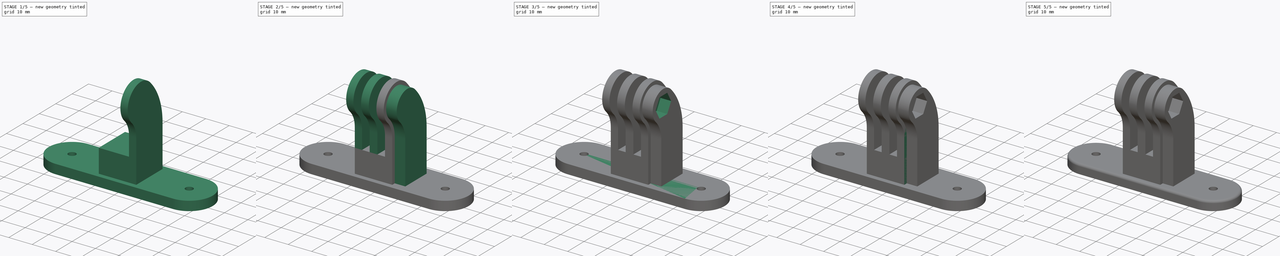
[diagram: build sequence overview — one tinted view per stage of 5, left to right]
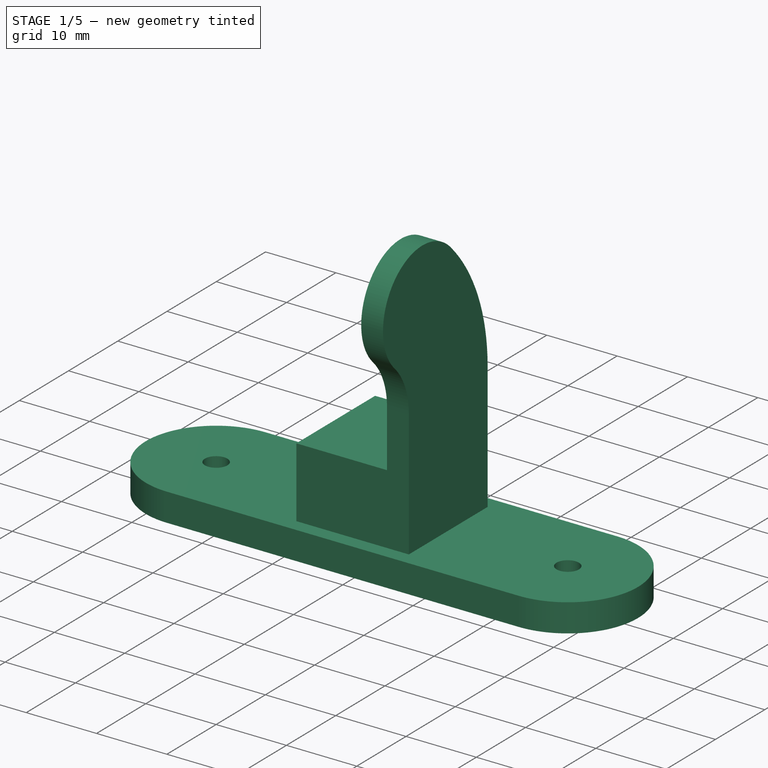
[diagram: stage 1 of 5 — iso view after this stage's code; geometry added in this stage tinted green]
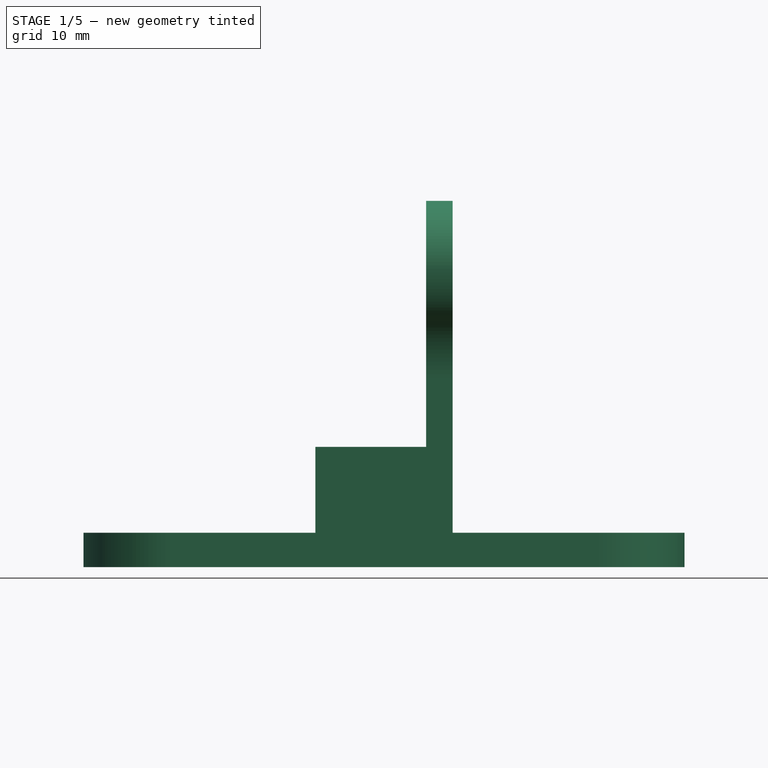
[diagram: stage 1 of 5 — front view after this stage's code; geometry added in this stage tinted green]
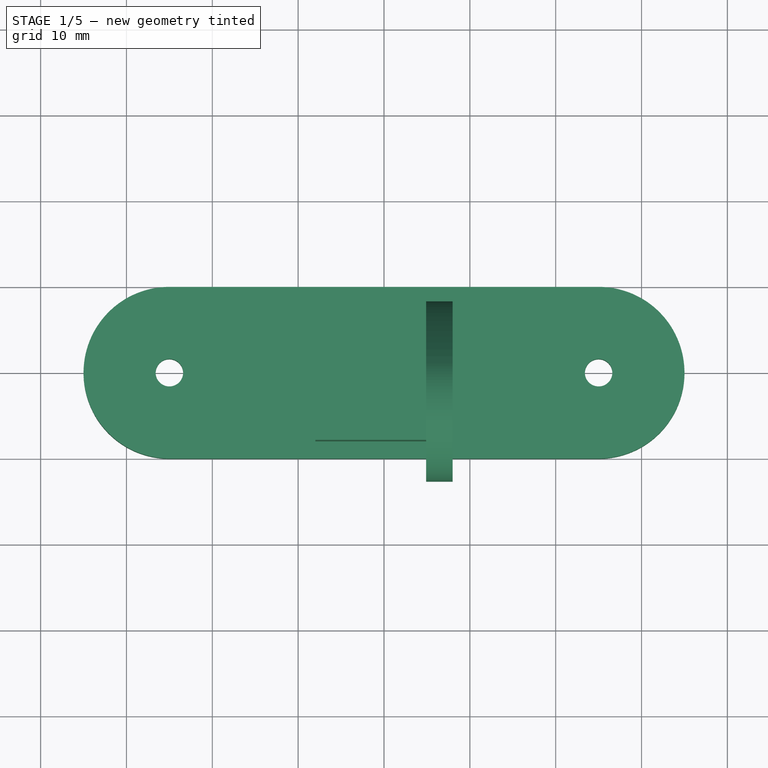
[diagram: stage 1 of 5 — top view after this stage's code; geometry added in this stage tinted green]
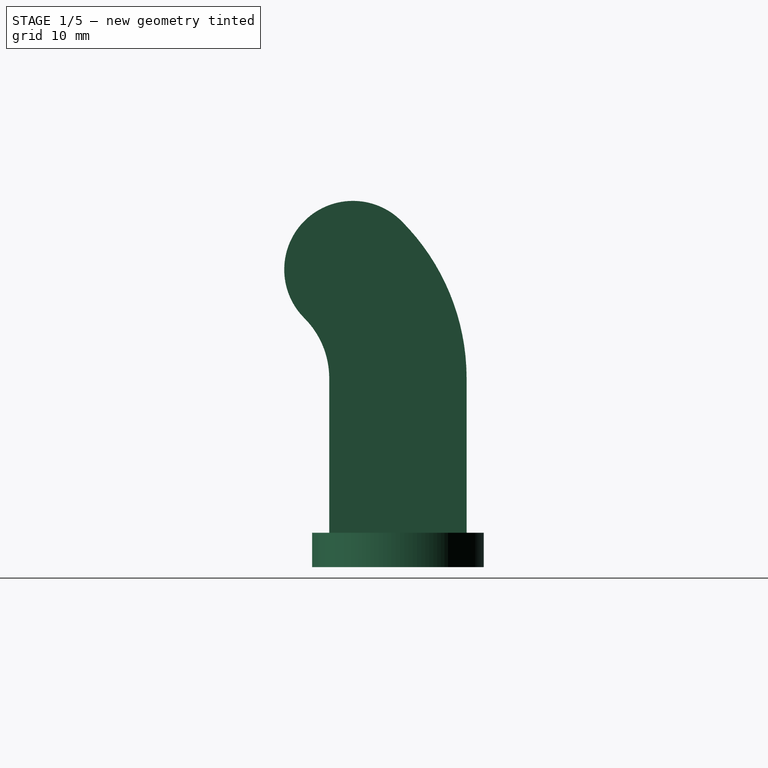
[diagram: stage 1 of 5 — right view after this stage's code; geometry added in this stage tinted green]
FCSTD DOCUMENT  (FreeCAD 0.19R24291 (Git))
Label: Screw-Mount
License: All rights reserved
LicenseURL: http://en.wikipedia.org/wiki/All_rights_reserved
objects: Sketcher::SketchObject×16, PartDesign::Pad×10, PartDesign::Pocket×6, PartDesign::Mirrored×2, PartDesign::Fillet×2, PartDesign::Body×2
note: 56 computed .brp shape members not serialized (recipe doc carries the construction recipe); baked Part::Feature solids carry a one-line shape summary decoded from their .brp

FEATURE [PartDesign::Body] Body  label="StraightTwoScrews"
  Group = -> [Sketch,Pad,Sketch001,Pocket,Sketch002,Pad001,Sketch003,Pad002,Mirrored,Sketch004,Pad003,Sketch005,Pocket001,Sketch006,Pad004,Sketch007,Pocket002,Fillet]
  Origin = -> Origin
  Tip = -> Fillet
FEATURE [Sketcher::SketchObject] Sketch012
  FullyConstrained = true
  MapMode = 5
  Support = -> [XY_Plane001]
  expr: Constraints[9] = Constraints[8] / 2
  sketch-geometry (4):
    g0: LineSegment StartX=-25 StartY=10 StartZ=0 EndX=25 EndY=10 EndZ=0
    g1: LineSegment StartX=-25 StartY=-10 StartZ=0 EndX=25 EndY=-10 EndZ=0
    g2: ArcOfCircle CenterX=-25 CenterY=0 CenterZ=0 NormalX=0 NormalY=0 NormalZ=1 AngleXU=0 Radius=10 StartAngle=1.5708 EndAngle=4.71239
    g3: ArcOfCircle CenterX=25 CenterY=2.3e-15 CenterZ=0 NormalX=0 NormalY=0 NormalZ=1 AngleXU=0 Radius=10 StartAngle=4.71239 EndAngle=7.85398
  constraints (10):
    c: Horizontal(g0)
    c: Horizontal(g1)
    c: Tangent(g2,g0) = 1.5708
    c: Tangent(g2,g1) = -1.5708
    c: Tangent(g3,g0) = 1.5708
    c: Tangent(g3,g1) = -1.5708
    c: Diameter(g2) = 20
    c: PointOnObject(g2,g-1)
    c: DistanceX(g2,g3) = 50
    c: DistanceX(g0,g-1) = 25
FEATURE [PartDesign::Pad] Pad009
  Direction = (1,1,1)
  Length = 4
  Length2 = 100
  Profile = -> Sketch012
  Type = 0
FEATURE [Sketcher::SketchObject] Sketch013
  ExternalGeometry = -> [Pad009]
  FullyConstrained = true
  MapMode = 5
  Placement = pos=(0,0,4) rot=(0,0,1;0rad)
  Support = -> [Pad009]
  expr: Constraints[3] = Constraints[2]
  sketch-geometry (2):
    g0: Circle CenterX=-25 CenterY=0 CenterZ=0 NormalX=0 NormalY=0 NormalZ=1 AngleXU=0 Radius=1.6
    g1: Circle CenterX=25 CenterY=0 CenterZ=0 NormalX=0 NormalY=0 NormalZ=1 AngleXU=0 Radius=1.6
  constraints (4):
    c: Coincident(g0,g-3)
    c: Coincident(g1,g-4)
    c: Diameter(g0) = 3.2
    c: Diameter(g1) = 3.2
FEATURE [PartDesign::Pocket] Pocket004
  BaseFeature = -> Pad009
  Length = 5
  Length2 = 100
  Profile = -> Sketch013
  Type = 1
FEATURE [Sketcher::SketchObject] Sketch014
  FullyConstrained = true
  MapMode = 5
  Placement = pos=(0,0,4) rot=(0,0,1;0rad)
  Support = -> [Pocket004]
  sketch-geometry (5):
    g0: LineSegment StartX=8 StartY=8 StartZ=0 EndX=-8 EndY=8 EndZ=0
    g1: LineSegment StartX=-8 StartY=8 StartZ=0 EndX=-8 EndY=-8 EndZ=0
    g2: LineSegment StartX=-8 StartY=-8 StartZ=0 EndX=8 EndY=-8 EndZ=0
    g3: LineSegment StartX=8 StartY=-8 StartZ=0 EndX=8 EndY=8 EndZ=0
    g4: Circle CenterX=0 CenterY=0 CenterZ=0 NormalX=0 NormalY=0 NormalZ=1 AngleXU=0 Radius=11.3137
  constraints (14):
    c: Coincident(g0,g1)
    c: Coincident(g1,g2)
    c: Coincident(g2,g3)
    c: Coincident(g3,g0)
    c: Equal(g0,g1)
    c: Equal(g0,g2)
    c: Equal(g0,g3)
    c: PointOnObject(g0,g4)
    c: PointOnObject(g1,g4)
    c: PointOnObject(g2,g4)
    c: PointOnObject(g3,g4)
    c: Coincident(g4,g-1)
    c: Horizontal(g0)
    c: Distance(g0) = 16
FEATURE [PartDesign::Pad] Pad008
  BaseFeature = -> Pocket004
  Direction = (1,1,1)
  Length = 10
  Length2 = 100
  Profile = -> Sketch014
  Type = 0
FEATURE [Sketcher::SketchObject] Sketch015
  ExternalGeometry = -> [Pad008]
  FullyConstrained = true
  MapMode = 5
  Placement = pos=(8,0,0) rot=(0.57735,0.57735,0.57735;2.0944rad)
  Support = -> [Pad008]
  sketch-geometry (7):
    g0: LineSegment StartX=-8 StartY=14 StartZ=0 EndX=-8 EndY=22 EndZ=0
    g1: LineSegment StartX=8 StartY=14 StartZ=0 EndX=8 EndY=22 EndZ=0
    g2: LineSegment StartX=-8 StartY=14 StartZ=0 EndX=8 EndY=14 EndZ=0
    g3: ArcOfCircle CenterX=-17.8995 CenterY=22 CenterZ=0 NormalX=0 NormalY=0 NormalZ=1 AngleXU=0 Radius=25.8995 StartAngle=0 EndAngle=0.785398
    g4: ArcOfCircle CenterX=-17.8995 CenterY=22 CenterZ=0 NormalX=0 NormalY=0 NormalZ=1 AngleXU=0 Radius=9.89949 StartAngle=1e-16 EndAngle=0.785398
    g5: LineSegment StartX=-10.8995 StartY=29 StartZ=0 EndX=0.414214 EndY=40.3137 EndZ=0
    g6: ArcOfCircle CenterX=-5.24264 CenterY=34.6569 CenterZ=0 NormalX=0 NormalY=0 NormalZ=1 AngleXU=0 Radius=8 StartAngle=0.785398 EndAngle=3.92699
  constraints (18):
    c: Coincident(g0,g-3)
    c: Vertical(g0)
    c: Coincident(g1,g-4)
    c: Vertical(g1)
    c: Horizontal(g0,g1)
    c: Distance(g0) = 8
    c: Coincident(g2,g0)
    c: Coincident(g2,g1)
    c: Tangent(g3,g1) = -1.5708
    c: Tangent(g4,g0) = -1.5708
    c: Coincident(g5,g4)
    c: Coincident(g5,g3)
    c: Perpendicular(g4,g5)
    c: Perpendicular(g3,g5)
    c: Angle(g2,g5) = 0.785398
    c: Distance(g4,g2) = 15
    c: Coincident(g6,g3)
    c: Tangent(g6,g4) = 1.5708
FEATURE [PartDesign::Pad] Pad007
  BaseFeature = -> Pad008
  Direction = (1,1,1)
  Length = 3.1
  Length2 = 100
  Profile = -> Sketch015
  Reversed = true
  Type = 0
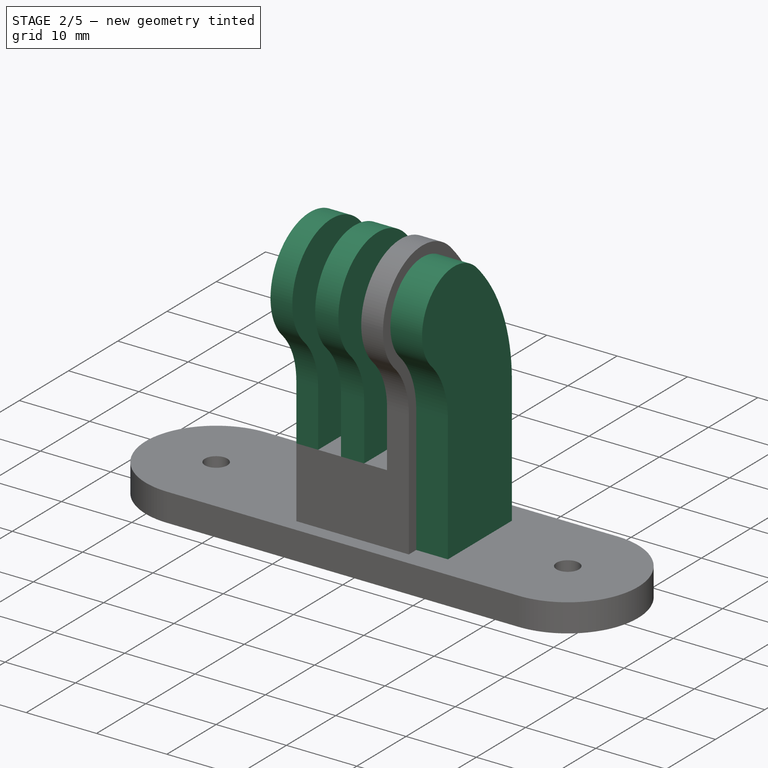
[diagram: stage 2 of 5 — iso view after this stage's code; geometry added in this stage tinted green]
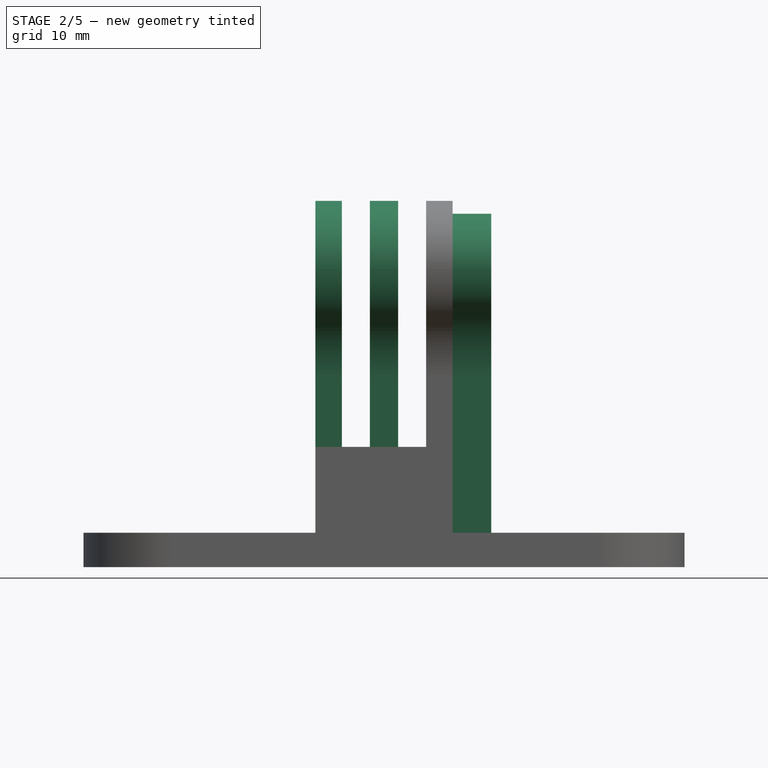
[diagram: stage 2 of 5 — front view after this stage's code; geometry added in this stage tinted green]
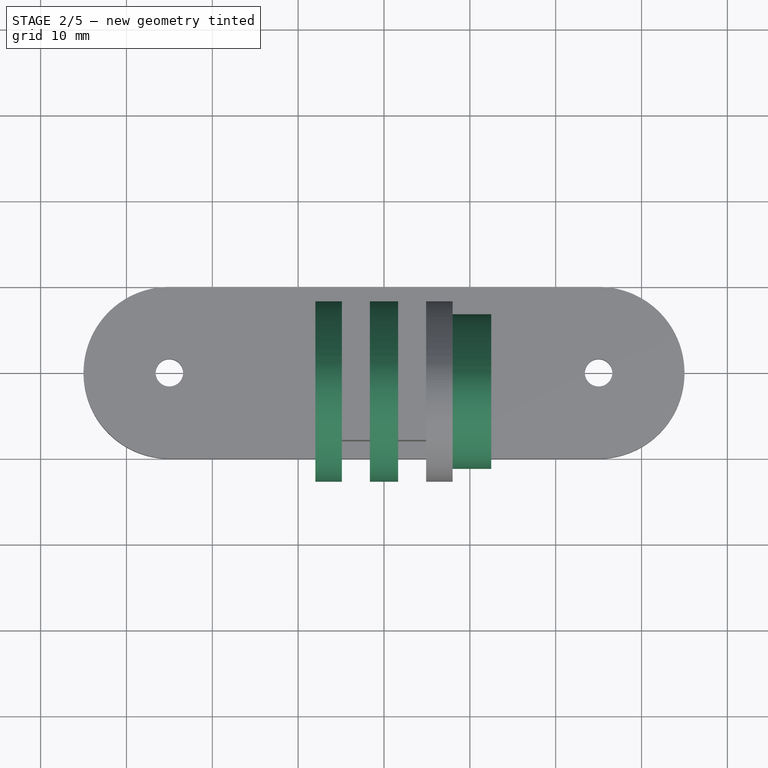
[diagram: stage 2 of 5 — top view after this stage's code; geometry added in this stage tinted green]
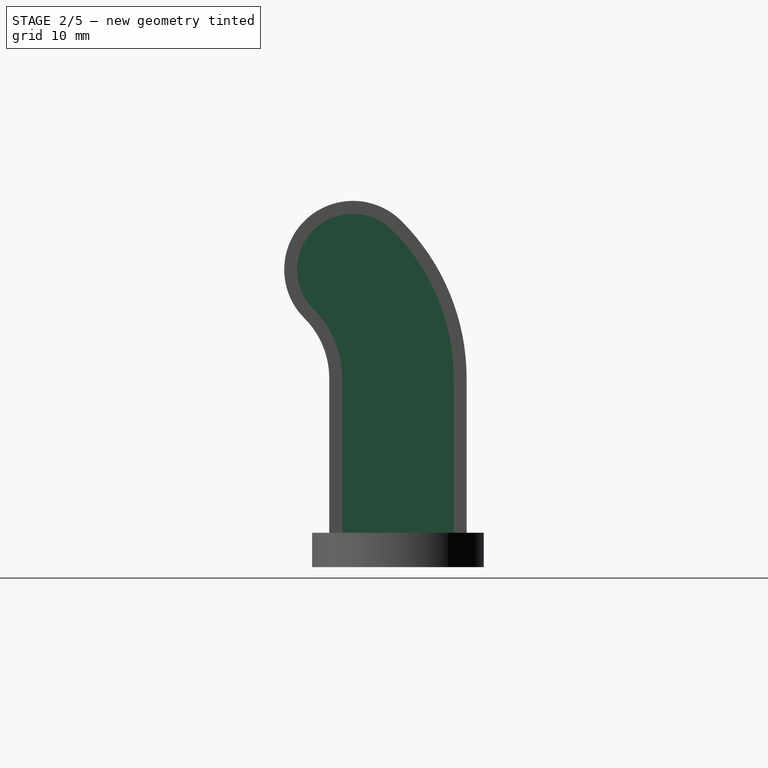
[diagram: stage 2 of 5 — right view after this stage's code; geometry added in this stage tinted green]
FEATURE [PartDesign::Mirrored] Mirrored001
  BaseFeature = -> Pad007
  MirrorPlane = -> YZ_Plane001
  Originals = -> [Pad007]
FEATURE [Sketcher::SketchObject] Sketch011
  ExternalGeometry = -> [Mirrored001]
  FullyConstrained = true
  MapMode = 5
  Placement = pos=(0,0,0) rot=(0.57735,0.57735,0.57735;2.0944rad)
  Support = -> [YZ_Plane001]
  sketch-geometry (6):
    g0: LineSegment StartX=-8 StartY=14 StartZ=0 EndX=8 EndY=14 EndZ=0
    g1: LineSegment StartX=8 StartY=14 StartZ=0 EndX=8 EndY=22 EndZ=0
    g2: LineSegment StartX=-8 StartY=14 StartZ=0 EndX=-8 EndY=22 EndZ=0
    g3: ArcOfCircle CenterX=-17.8995 CenterY=22 CenterZ=0 NormalX=0 NormalY=0 NormalZ=1 AngleXU=0 Radius=25.8995 StartAngle=3e-16 EndAngle=0.785398
    g4: ArcOfCircle CenterX=-17.8995 CenterY=22 CenterZ=0 NormalX=0 NormalY=0 NormalZ=1 AngleXU=0 Radius=9.89949 StartAngle=3e-16 EndAngle=0.785398
    g5: ArcOfCircle CenterX=-5.24264 CenterY=34.6569 CenterZ=0 NormalX=0 NormalY=0 NormalZ=1 AngleXU=0 Radius=8 StartAngle=0.785398 EndAngle=3.92699
  constraints (15):
    c: Coincident(g0,g-7)
    c: Coincident(g0,g-7)
    c: Coincident(g1,g0)
    c: Coincident(g1,g-6)
    c: Coincident(g2,g0)
    c: Coincident(g2,g-5)
    c: Coincident(g3,g-5)
    c: Coincident(g3,g1)
    c: Coincident(g3,g-4)
    c: Coincident(g4,g3)
    c: Coincident(g4,g2)
    c: Coincident(g4,g-5)
    c: Coincident(g5,g-4)
    c: Coincident(g5,g4)
    c: Coincident(g5,g3)
FEATURE [PartDesign::Pad] Pad005
  BaseFeature = -> Mirrored001
  Direction = (1,1,1)
  Length = 3.3
  Length2 = 100
  Midplane = true
  Profile = -> Sketch011
  Type = 0
FEATURE [Sketcher::SketchObject] Sketch010
  ExternalGeometry = -> [Pad005]
  FullyConstrained = true
  MapMode = 5
  Placement = pos=(8,0,0) rot=(0.57735,0.57735,0.57735;2.0944rad)
  Support = -> [Pad005]
  sketch-geometry (1):
    g0: Circle CenterX=-5.24264 CenterY=34.6569 CenterZ=0 NormalX=0 NormalY=0 NormalZ=1 AngleXU=0 Radius=2.6
  constraints (2):
    c: Coincident(g0,g-3)
    c: Diameter(g0) = 5.2
FEATURE [PartDesign::Pocket] Pocket003
  BaseFeature = -> Pad005
  Length = 5
  Length2 = 100
  Profile = -> Sketch010
  Type = 1
FEATURE [Sketcher::SketchObject] Sketch009
  ExternalGeometry = -> [Pocket003]
  FullyConstrained = true
  MapMode = 5
  Placement = pos=(8,0,0) rot=(0.57735,0.57735,0.57735;2.0944rad)
  Support = -> [Pocket003]
  sketch-geometry (6):
    g0: LineSegment StartX=-6.5 StartY=4 StartZ=0 EndX=-6.5 EndY=22 EndZ=0
    g1: LineSegment StartX=6.5 StartY=4 StartZ=0 EndX=6.5 EndY=22 EndZ=0
    g2: LineSegment StartX=-6.5 StartY=4 StartZ=0 EndX=6.5 EndY=4 EndZ=0
    g3: ArcOfCircle CenterX=-17.8995 CenterY=22 CenterZ=0 NormalX=0 NormalY=0 NormalZ=1 AngleXU=0 Radius=11.3995 StartAngle=1.46e-14 EndAngle=0.785398
    g4: ArcOfCircle CenterX=-17.8995 CenterY=22 CenterZ=0 NormalX=0 NormalY=0 NormalZ=1 AngleXU=0 Radius=24.3995 StartAngle=-6.2e-15 EndAngle=0.785398
    g5: ArcOfCircle CenterX=-5.24264 CenterY=34.6569 CenterZ=0 NormalX=0 NormalY=0 NormalZ=1 AngleXU=0 Radius=6.5 StartAngle=0.785398 EndAngle=3.92699
  constraints (14):
    c: PointOnObject(g0,g-3)
    c: Vertical(g0)
    c: PointOnObject(g1,g-3)
    c: Vertical(g1)
    c: Coincident(g2,g0)
    c: Coincident(g2,g1)
    c: Coincident(g3,g-6)
    c: Tangent(g3,g0) = -1.5708
    c: Coincident(g4,g3)
    c: Tangent(g4,g1) = -1.5708
    c: Coincident(g5,g-5)
    c: Tangent(g5,g4) = -1.5708
    c: Tangent(g5,g3) = 1.5708
    c: Diameter(g5) = 13
FEATURE [PartDesign::Pad] Pad006
  BaseFeature = -> Pocket003
  Direction = (1,1,1)
  Length = 4.5
  Length2 = 100
  Profile = -> Sketch009
  Type = 0
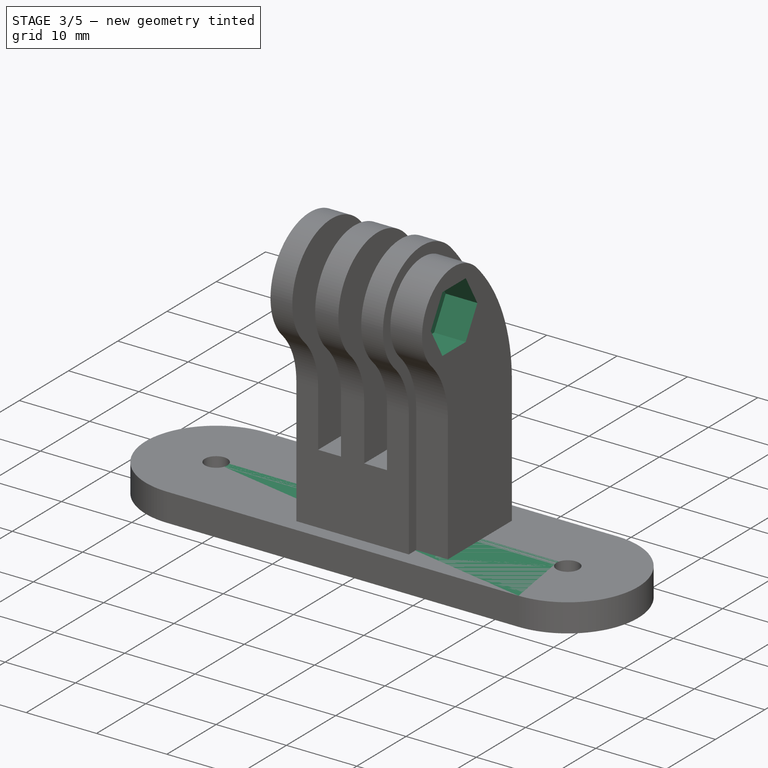
[diagram: stage 3 of 5 — iso view after this stage's code; geometry added in this stage tinted green]
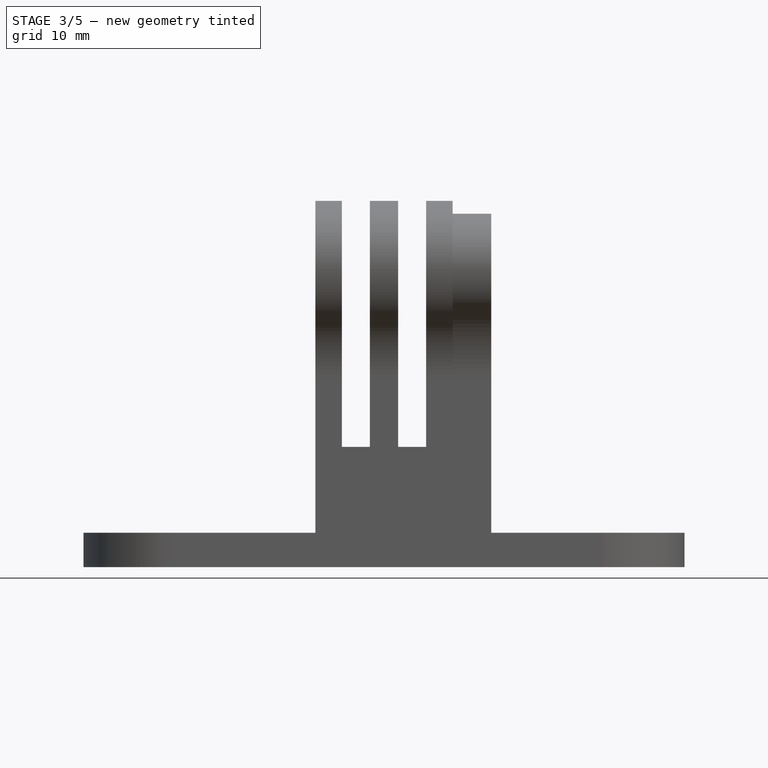
[diagram: stage 3 of 5 — front view after this stage's code; geometry added in this stage tinted green]
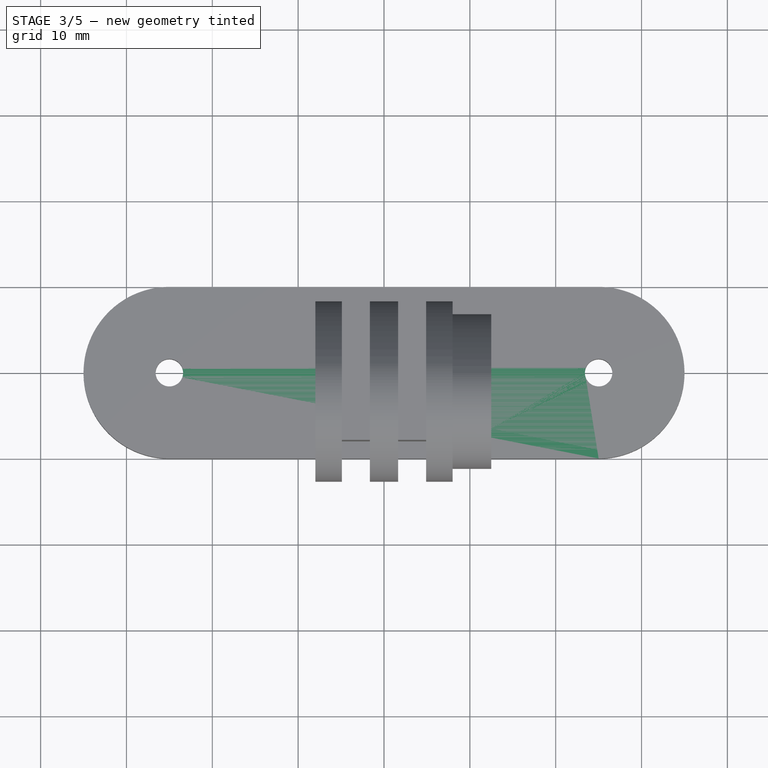
[diagram: stage 3 of 5 — top view after this stage's code; geometry added in this stage tinted green]
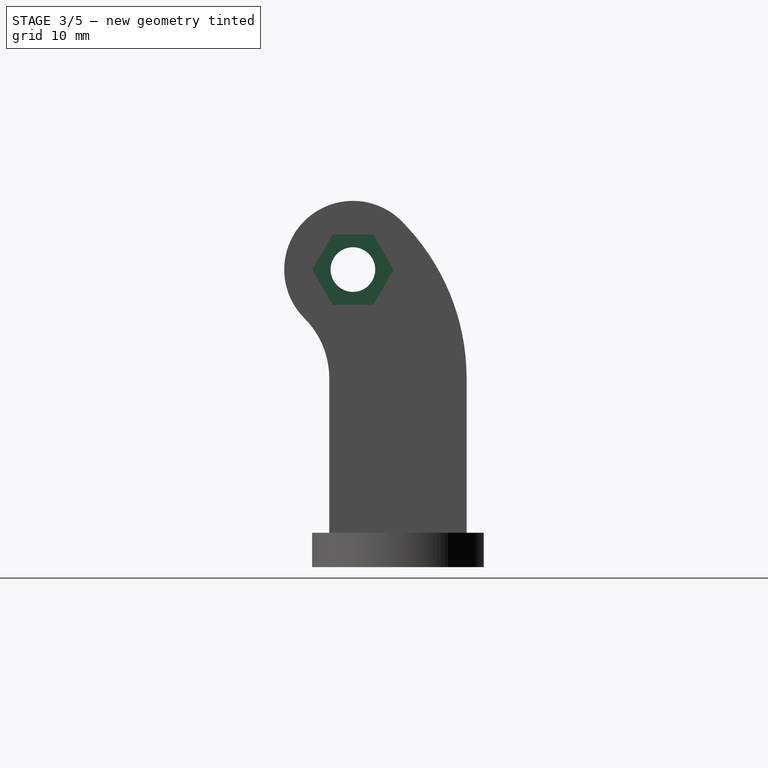
[diagram: stage 3 of 5 — right view after this stage's code; geometry added in this stage tinted green]
FEATURE [Sketcher::SketchObject] Sketch
  FullyConstrained = true
  MapMode = 5
  Support = -> [XY_Plane]
  expr: Constraints[9] = Constraints[8] / 2
  sketch-geometry (4):
    g0: LineSegment StartX=-25 StartY=10 StartZ=0 EndX=25 EndY=10 EndZ=0
    g1: LineSegment StartX=-25 StartY=-10 StartZ=0 EndX=25 EndY=-10 EndZ=0
    g2: ArcOfCircle CenterX=-25 CenterY=0 CenterZ=0 NormalX=0 NormalY=0 NormalZ=1 AngleXU=0 Radius=10 StartAngle=1.5708 EndAngle=4.71239
    g3: ArcOfCircle CenterX=25 CenterY=2.3e-15 CenterZ=0 NormalX=0 NormalY=0 NormalZ=1 AngleXU=0 Radius=10 StartAngle=4.71239 EndAngle=7.85398
  constraints (10):
    c: Horizontal(g0)
    c: Horizontal(g1)
    c: Tangent(g2,g0) = 1.5708
    c: Tangent(g2,g1) = -1.5708
    c: Tangent(g3,g0) = 1.5708
    c: Tangent(g3,g1) = -1.5708
    c: Diameter(g2) = 20
    c: PointOnObject(g2,g-1)
    c: DistanceX(g2,g3) = 50
    c: DistanceX(g0,g-1) = 25
FEATURE [PartDesign::Pad] Pad
  Direction = (1,1,1)
  Length = 4
  Length2 = 100
  Profile = -> Sketch
  Type = 0
FEATURE [Sketcher::SketchObject] Sketch001
  ExternalGeometry = -> [Pad]
  FullyConstrained = true
  MapMode = 5
  Placement = pos=(0,0,4) rot=(0,0,1;0rad)
  Support = -> [Pad]
  expr: Constraints[3] = Constraints[2]
  sketch-geometry (2):
    g0: Circle CenterX=-25 CenterY=0 CenterZ=0 NormalX=0 NormalY=0 NormalZ=1 AngleXU=0 Radius=1.6
    g1: Circle CenterX=25 CenterY=0 CenterZ=0 NormalX=0 NormalY=0 NormalZ=1 AngleXU=0 Radius=1.6
  constraints (4):
    c: Coincident(g0,g-3)
    c: Coincident(g1,g-4)
    c: Diameter(g0) = 3.2
    c: Diameter(g1) = 3.2
FEATURE [PartDesign::Pocket] Pocket
  BaseFeature = -> Pad
  Length = 5
  Length2 = 100
  Profile = -> Sketch001
  Type = 1
FEATURE [Sketcher::SketchObject] Sketch008
  ExternalGeometry = -> [Pad006]
  FullyConstrained = true
  MapMode = 5
  Placement = pos=(12.5,0,0) rot=(0.57735,0.57735,0.57735;2.0944rad)
  Support = -> [Pad006]
  sketch-geometry (7):
    g0: LineSegment StartX=-2.8755 StartY=38.7569 StartZ=0 EndX=-7.60978 EndY=38.7569 EndZ=0
    g1: LineSegment StartX=-7.60978 StartY=38.7569 StartZ=0 EndX=-9.97691 EndY=34.6569 EndZ=0
    g2: LineSegment StartX=-9.97691 StartY=34.6569 StartZ=0 EndX=-7.60978 EndY=30.5569 EndZ=0
    g3: LineSegment StartX=-7.60978 StartY=30.5569 StartZ=0 EndX=-2.8755 EndY=30.5569 EndZ=0
    g4: LineSegment StartX=-2.8755 StartY=30.5569 StartZ=0 EndX=-0.508368 EndY=34.6569 EndZ=0
    g5: LineSegment StartX=-0.508368 StartY=34.6569 StartZ=0 EndX=-2.8755 EndY=38.7569 EndZ=0
    g6: Circle CenterX=-5.24264 CenterY=34.6569 CenterZ=0 NormalX=0 NormalY=0 NormalZ=1 AngleXU=0 Radius=4.73427
  constraints (16):
    c: Coincident(g0,g1)
    c: Coincident(g1,g2)
    c: Coincident(g2,g3)
    c: Coincident(g3,g4)
    c: Coincident(g4,g5)
    c: Coincident(g5,g0)
    c: Equal(g0, g1-g5) x5
    c: PointOnObject(g0,g6)
    c: PointOnObject(g1,g6)
    c: PointOnObject(g2,g6)
    c: PointOnObject(g3,g6)
    c: PointOnObject(g4,g6)
    c: PointOnObject(g5,g6)
    c: Horizontal(g0)
    c: Distance(g1,g5) = 8.2
    c: Coincident(g6,g-4)
FEATURE [PartDesign::Pocket] Pocket005
  BaseFeature = -> Pad006
  Length = 5
  Length2 = 100
  Profile = -> Sketch008
  Type = 2
FEATURE [PartDesign::Fillet] Fillet001
  Base = -> Pocket005 [Edge7,Edge14,Edge10,Edge4]
  BaseFeature = -> Pocket005
  Radius = 1
  SupportTransform = false
FEATURE [PartDesign::Body] Body001  label="CurvedTwoScrews001"
  Group = -> [Sketch012,Pad009,Sketch013,Pocket004,Sketch014,Pad008,Sketch015,Pad007,Mirrored001,Sketch011,Pad005,Sketch010,Pocket003,Sketch009,Pad006,Sketch008,Pocket005,Fillet001]
  Origin = -> Origin001
  Tip = -> Fillet001
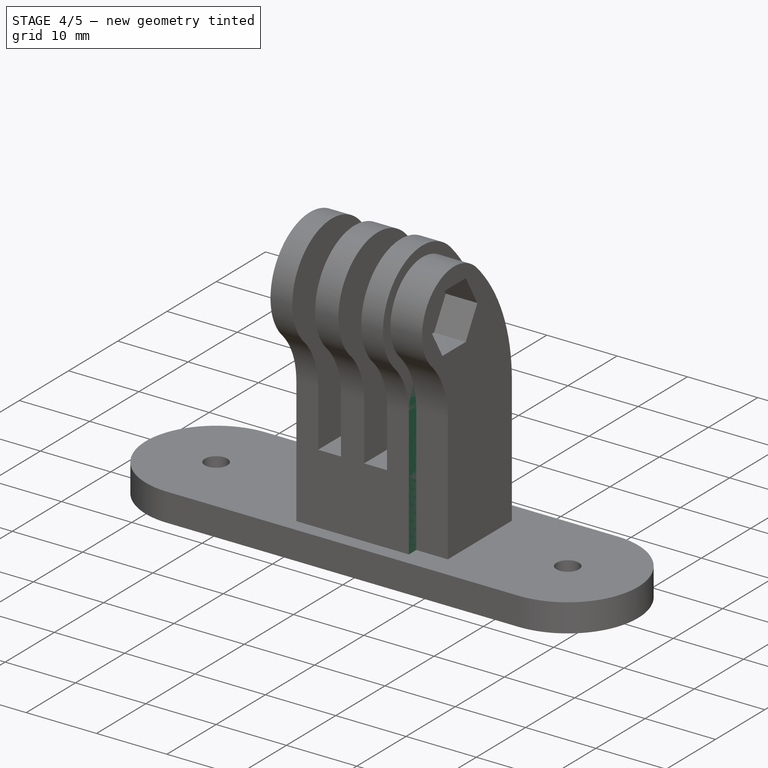
[diagram: stage 4 of 5 — iso view after this stage's code; geometry added in this stage tinted green]
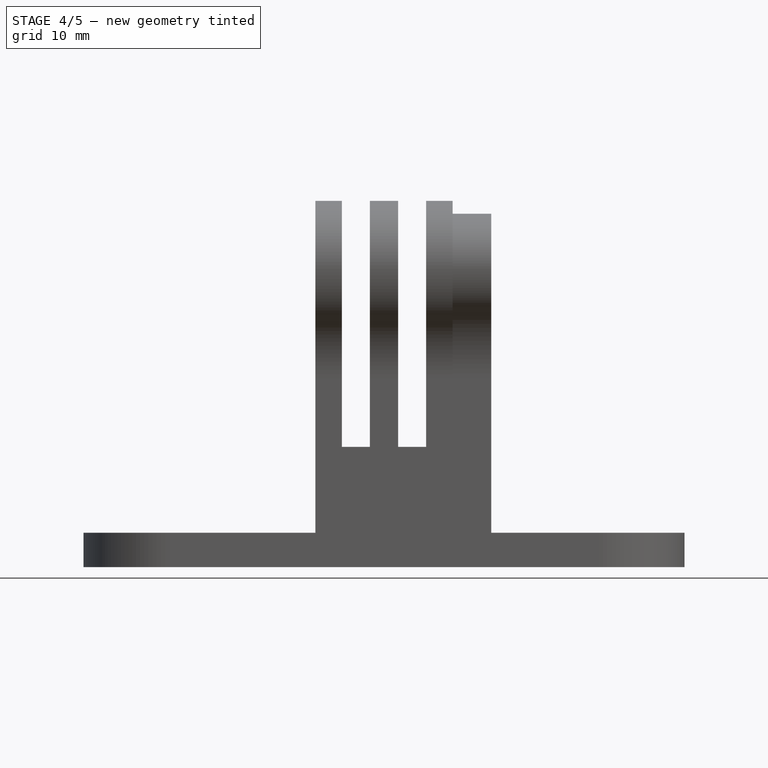
[diagram: stage 4 of 5 — front view after this stage's code; geometry added in this stage tinted green]
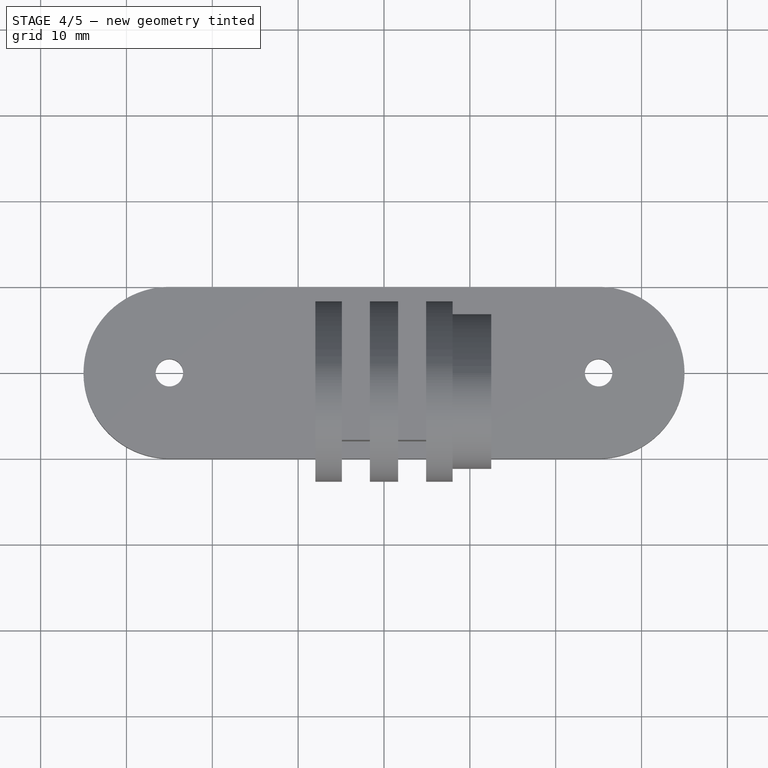
[diagram: stage 4 of 5 — top view after this stage's code; geometry added in this stage tinted green]
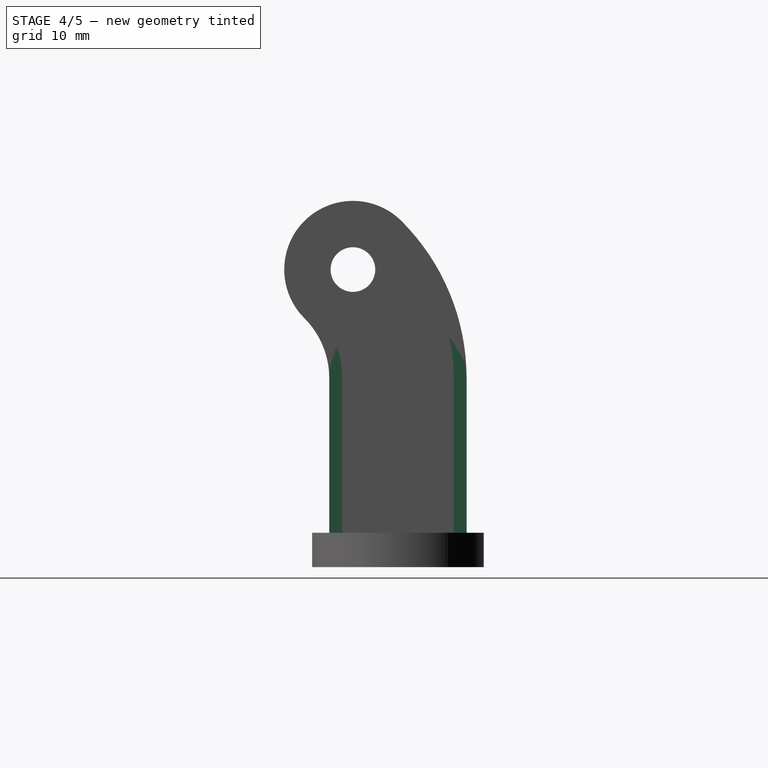
[diagram: stage 4 of 5 — right view after this stage's code; geometry added in this stage tinted green]
FEATURE [Sketcher::SketchObject] Sketch002
  FullyConstrained = true
  MapMode = 5
  Placement = pos=(0,0,4) rot=(0,0,1;0rad)
  Support = -> [Pocket]
  sketch-geometry (5):
    g0: LineSegment StartX=8 StartY=8 StartZ=0 EndX=-8 EndY=8 EndZ=0
    g1: LineSegment StartX=-8 StartY=8 StartZ=0 EndX=-8 EndY=-8 EndZ=0
    g2: LineSegment StartX=-8 StartY=-8 StartZ=0 EndX=8 EndY=-8 EndZ=0
    g3: LineSegment StartX=8 StartY=-8 StartZ=0 EndX=8 EndY=8 EndZ=0
    g4: Circle CenterX=0 CenterY=0 CenterZ=0 NormalX=0 NormalY=0 NormalZ=1 AngleXU=0 Radius=11.3137
  constraints (14):
    c: Coincident(g0,g1)
    c: Coincident(g1,g2)
    c: Coincident(g2,g3)
    c: Coincident(g3,g0)
    c: Equal(g0,g1)
    c: Equal(g0,g2)
    c: Equal(g0,g3)
    c: PointOnObject(g0,g4)
    c: PointOnObject(g1,g4)
    c: PointOnObject(g2,g4)
    c: PointOnObject(g3,g4)
    c: Coincident(g4,g-1)
    c: Horizontal(g0)
    c: Distance(g0) = 16
FEATURE [PartDesign::Pad] Pad001
  BaseFeature = -> Pocket
  Direction = (1,1,1)
  Length = 10
  Length2 = 100
  Profile = -> Sketch002
  Type = 0
FEATURE [Sketcher::SketchObject] Sketch003
  ExternalGeometry = -> [Pad001]
  FullyConstrained = true
  MapMode = 5
  Placement = pos=(8,0,0) rot=(0.57735,0.57735,0.57735;2.0944rad)
  Support = -> [Pad001]
  sketch-geometry (4):
    g0: LineSegment StartX=-8 StartY=14 StartZ=0 EndX=-8 EndY=22 EndZ=0
    g1: LineSegment StartX=8 StartY=14 StartZ=0 EndX=8 EndY=22 EndZ=0
    g2: ArcOfCircle CenterX=1.9e-15 CenterY=22 CenterZ=0 NormalX=0 NormalY=0 NormalZ=1 AngleXU=0 Radius=8 StartAngle=8.88e-14 EndAngle=3.14159
    g3: LineSegment StartX=-8 StartY=14 StartZ=0 EndX=8 EndY=14 EndZ=0
  constraints (10):
    c: Coincident(g0,g-3)
    c: Vertical(g0)
    c: Coincident(g1,g-4)
    c: Vertical(g1)
    c: Horizontal(g0,g1)
    c: Distance(g0) = 8
    c: Coincident(g2,g0)
    c: Tangent(g2,g1) = -1.5708
    c: Coincident(g3,g0)
    c: Coincident(g3,g1)
FEATURE [PartDesign::Pad] Pad002
  BaseFeature = -> Pad001
  Direction = (1,1,1)
  Length = 3.1
  Length2 = 100
  Profile = -> Sketch003
  Reversed = true
  Type = 0
FEATURE [PartDesign::Mirrored] Mirrored
  BaseFeature = -> Pad002
  MirrorPlane = -> YZ_Plane
  Originals = -> [Pad002]
FEATURE [Sketcher::SketchObject] Sketch004
  ExternalGeometry = -> [Mirrored]
  FullyConstrained = true
  MapMode = 5
  Placement = pos=(0,0,0) rot=(0.57735,0.57735,0.57735;2.0944rad)
  Support = -> [YZ_Plane]
  sketch-geometry (4):
    g0: LineSegment StartX=-8 StartY=14 StartZ=0 EndX=8 EndY=14 EndZ=0
    g1: LineSegment StartX=-8 StartY=14 StartZ=0 EndX=-8 EndY=22 EndZ=0
    g2: LineSegment StartX=8 StartY=14 StartZ=0 EndX=8 EndY=22 EndZ=0
    g3: ArcOfCircle CenterX=-1.1e-15 CenterY=22 CenterZ=0 NormalX=0 NormalY=0 NormalZ=1 AngleXU=0 Radius=8 StartAngle=9e-16 EndAngle=3.14159
  constraints (8):
    c: Coincident(g0,g-3)
    c: Coincident(g0,g-4)
    c: Coincident(g1,g0)
    c: Coincident(g1,g-5)
    c: Coincident(g2,g0)
    c: Coincident(g2,g-5)
    c: Coincident(g3,g1)
    c: Tangent(g3,g2) = -1.5708
FEATURE [PartDesign::Pad] Pad003
  BaseFeature = -> Mirrored
  Direction = (1,1,1)
  Length = 3.3
  Length2 = 100
  Midplane = true
  Profile = -> Sketch004
  Type = 0
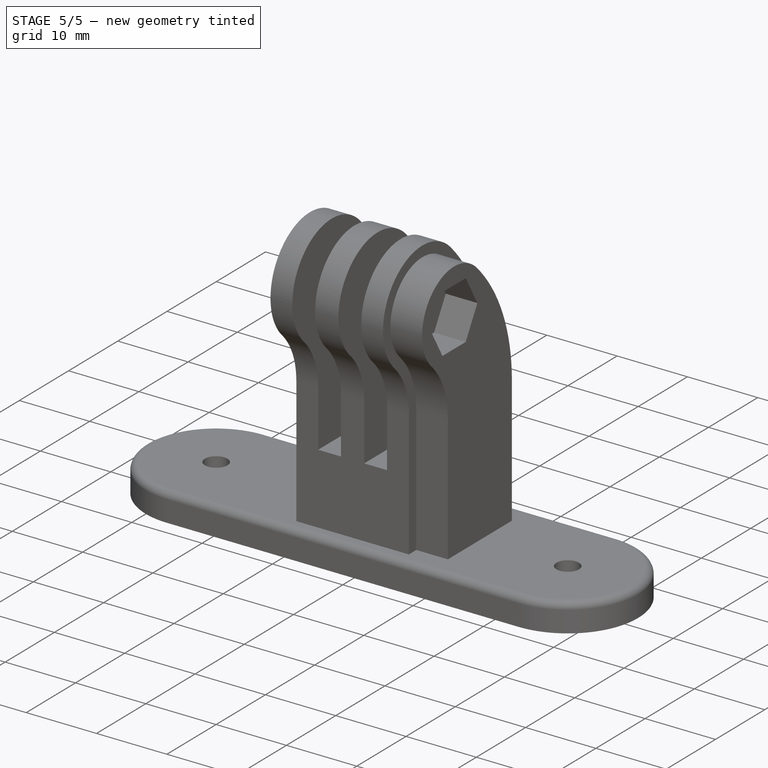
[diagram: stage 5 of 5 — iso view after this stage's code; geometry added in this stage tinted green]
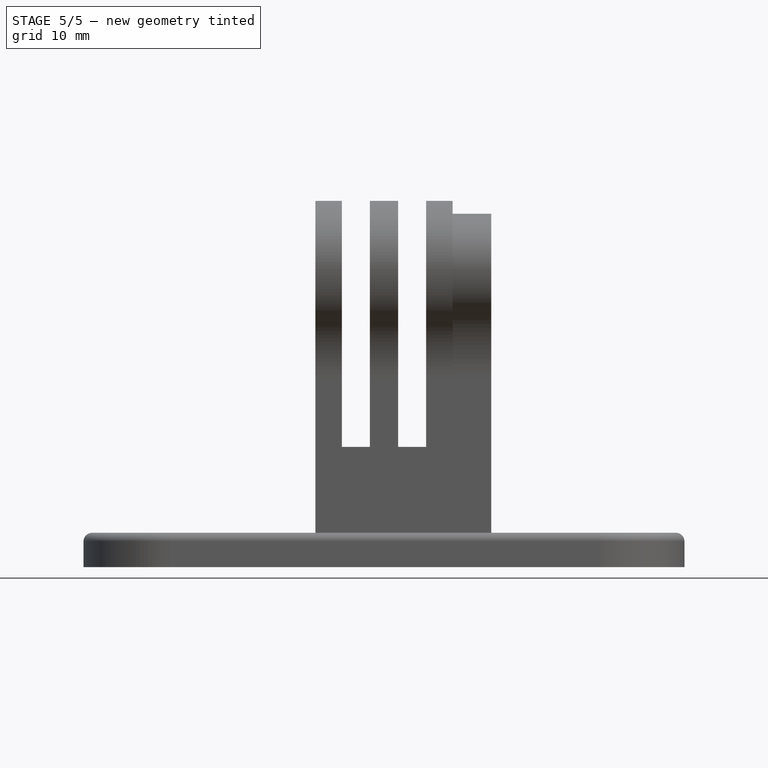
[diagram: stage 5 of 5 — front view after this stage's code; geometry added in this stage tinted green]
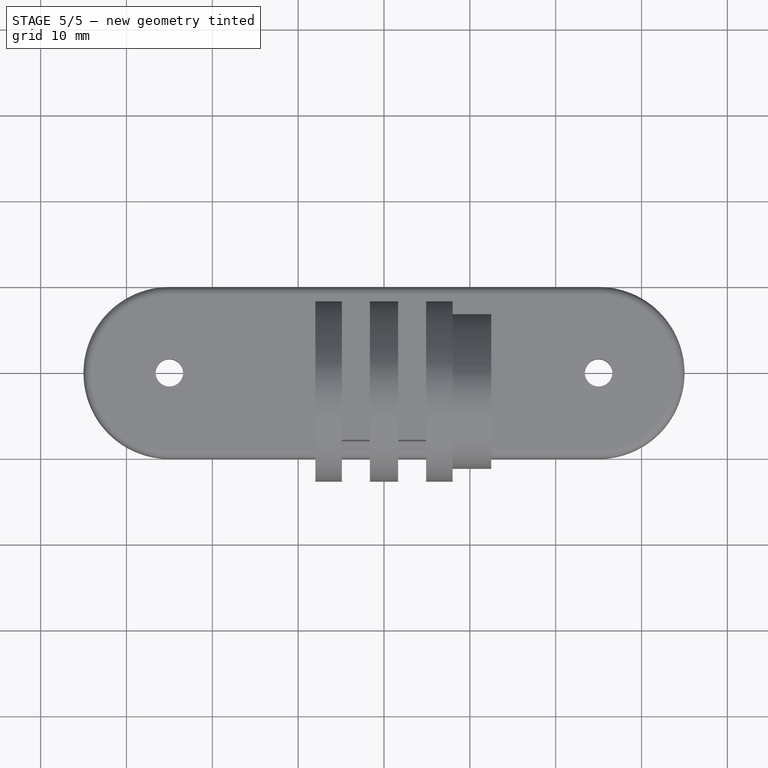
[diagram: stage 5 of 5 — top view after this stage's code; geometry added in this stage tinted green]
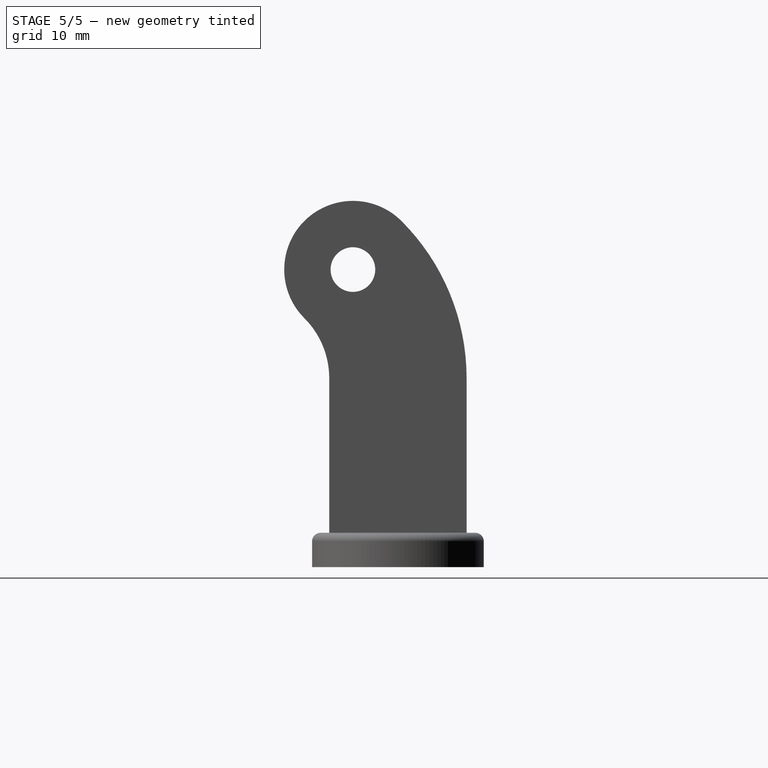
[diagram: stage 5 of 5 — right view after this stage's code; geometry added in this stage tinted green]
FEATURE [Sketcher::SketchObject] Sketch005
  ExternalGeometry = -> [Pad003]
  FullyConstrained = true
  MapMode = 5
  Placement = pos=(8,0,0) rot=(0.57735,0.57735,0.57735;2.0944rad)
  Support = -> [Pad003]
  sketch-geometry (1):
    g0: Circle CenterX=0 CenterY=22 CenterZ=0 NormalX=0 NormalY=0 NormalZ=1 AngleXU=0 Radius=2.6
  constraints (2):
    c: Coincident(g0,g-3)
    c: Diameter(g0) = 5.2
FEATURE [PartDesign::Pocket] Pocket001
  BaseFeature = -> Pad003
  Length = 5
  Length2 = 100
  Profile = -> Sketch005
  Type = 1
FEATURE [Sketcher::SketchObject] Sketch006
  ExternalGeometry = -> [Pocket001]
  FullyConstrained = true
  MapMode = 5
  Placement = pos=(8,0,0) rot=(0.57735,0.57735,0.57735;2.0944rad)
  Support = -> [Pocket001]
  sketch-geometry (4):
    g0: LineSegment StartX=-6.5 StartY=4 StartZ=0 EndX=-6.5 EndY=22 EndZ=0
    g1: LineSegment StartX=6.5 StartY=4 StartZ=0 EndX=6.5 EndY=22 EndZ=0
    g2: ArcOfCircle CenterX=0 CenterY=22 CenterZ=0 NormalX=0 NormalY=0 NormalZ=1 AngleXU=0 Radius=6.5 StartAngle=2.2542e-12 EndAngle=3.14159
    g3: LineSegment StartX=-6.5 StartY=4 StartZ=0 EndX=6.5 EndY=4 EndZ=0
  constraints (11):
    c: PointOnObject(g0,g-3)
    c: Vertical(g0)
    c: PointOnObject(g1,g-3)
    c: Vertical(g1)
    c: Horizontal(g0,g1)
    c: Coincident(g2,g-6)
    c: Coincident(g2,g0)
    c: Diameter(g2) = 13
    c: Tangent(g2,g1) = -1.5708
    c: Coincident(g3,g0)
    c: Coincident(g3,g1)
FEATURE [PartDesign::Pad] Pad004
  BaseFeature = -> Pocket001
  Direction = (1,1,1)
  Length = 4.5
  Length2 = 100
  Profile = -> Sketch006
  Type = 0
FEATURE [Sketcher::SketchObject] Sketch007
  ExternalGeometry = -> [Pad004]
  FullyConstrained = true
  MapMode = 5
  Placement = pos=(12.5,0,0) rot=(0.57735,0.57735,0.57735;2.0944rad)
  Support = -> [Pad004]
  sketch-geometry (7):
    g0: LineSegment StartX=2.36714 StartY=26.1 StartZ=0 EndX=-2.36714 EndY=26.1 EndZ=0
    g1: LineSegment StartX=-2.36714 StartY=26.1 StartZ=0 EndX=-4.73427 EndY=22 EndZ=0
    g2: LineSegment StartX=-4.73427 StartY=22 StartZ=0 EndX=-2.36714 EndY=17.9 EndZ=0
    g3: LineSegment StartX=-2.36714 StartY=17.9 StartZ=0 EndX=2.36714 EndY=17.9 EndZ=0
    g4: LineSegment StartX=2.36714 StartY=17.9 StartZ=0 EndX=4.73427 EndY=22 EndZ=0
    g5: LineSegment StartX=4.73427 StartY=22 StartZ=0 EndX=2.36714 EndY=26.1 EndZ=0
    g6: Circle CenterX=0 CenterY=22 CenterZ=0 NormalX=0 NormalY=0 NormalZ=1 AngleXU=0 Radius=4.73427
  constraints (16):
    c: Coincident(g0,g1)
    c: Coincident(g1,g2)
    c: Coincident(g2,g3)
    c: Coincident(g3,g4)
    c: Coincident(g4,g5)
    c: Coincident(g5,g0)
    c: Equal(g0, g1-g5) x5
    c: PointOnObject(g0,g6)
    c: PointOnObject(g1,g6)
    c: PointOnObject(g2,g6)
    c: PointOnObject(g3,g6)
    c: PointOnObject(g4,g6)
    c: PointOnObject(g5,g6)
    c: Coincident(g6,g-3)
    c: Horizontal(g0)
    c: Distance(g1,g5) = 8.2
FEATURE [PartDesign::Pocket] Pocket002
  BaseFeature = -> Pad004
  Length = 5
  Length2 = 100
  Profile = -> Sketch007
  Type = 2
FEATURE [PartDesign::Fillet] Fillet
  Base = -> Pocket002 [Edge7,Edge14,Edge10,Edge4]
  BaseFeature = -> Pocket002
  Radius = 1
  SupportTransform = false
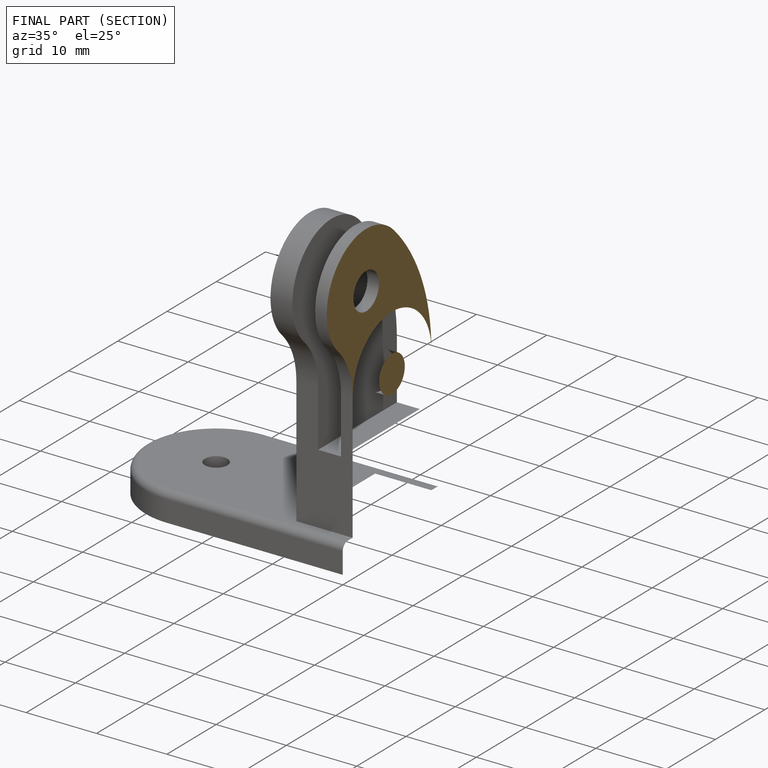
[diagram: finished part — half-section view (interior)]
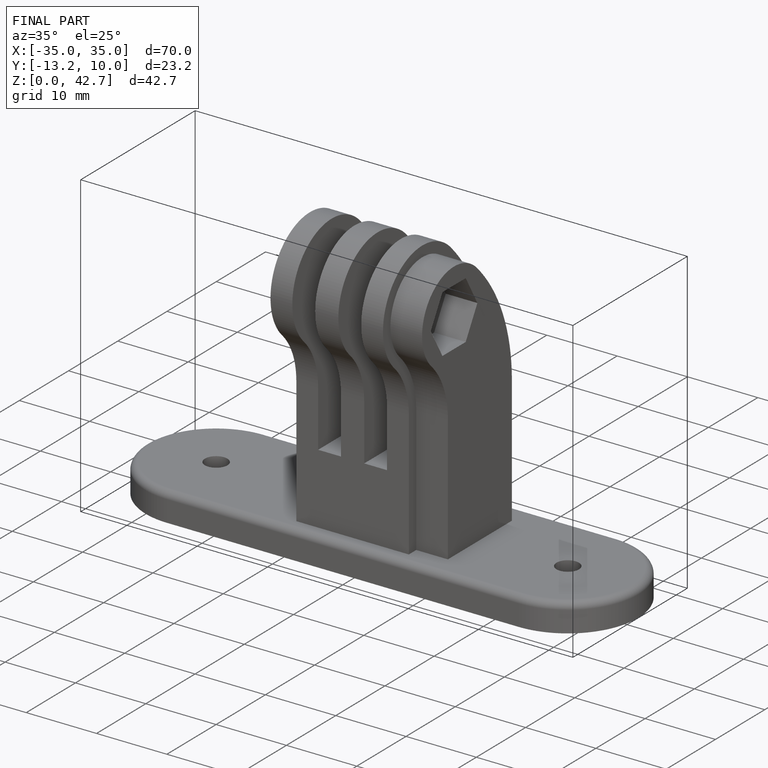
[diagram: finished part — iso view with bounding-box wireframe]
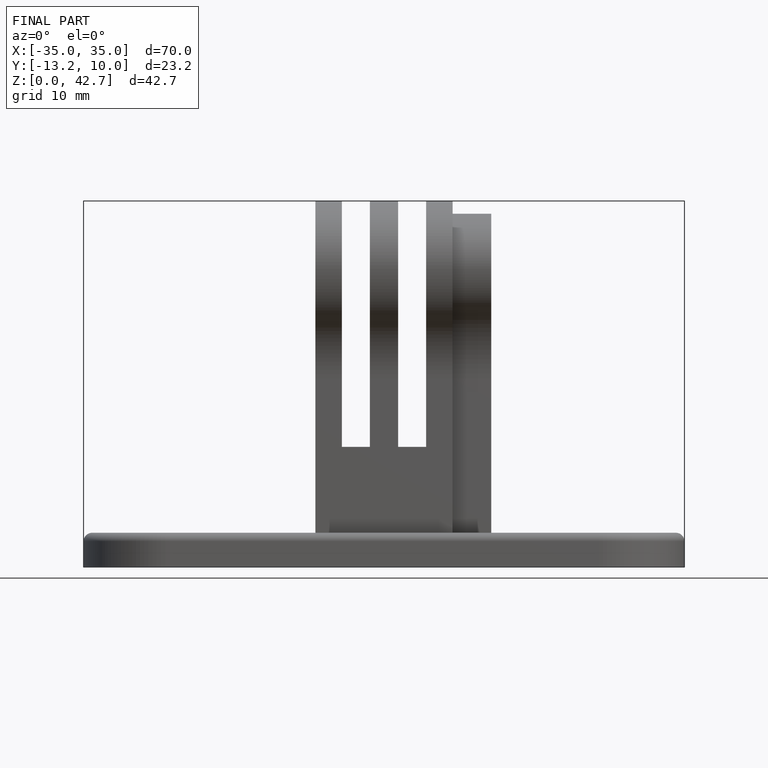
[diagram: finished part — front view with bounding-box wireframe]
